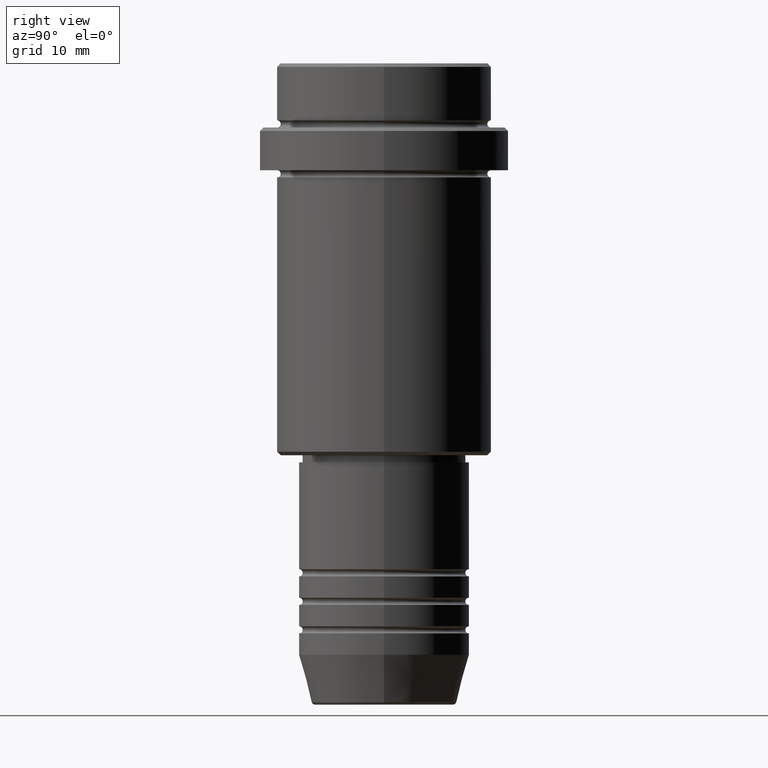
[diagram: clean part render]
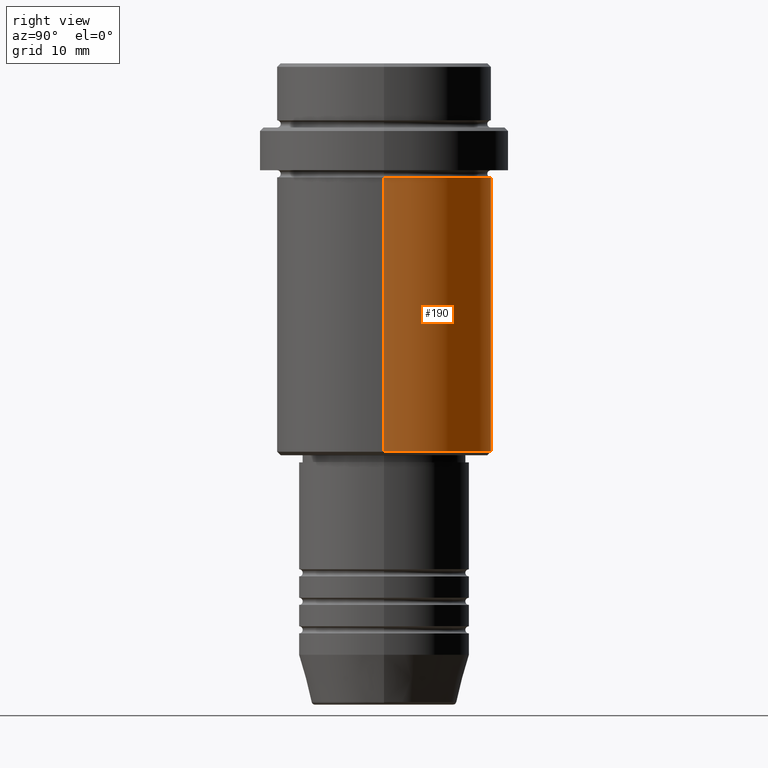
[diagram: same view with one face highlighted and labeled with its STEP entity id]
A machine part, right view. The second image highlights one B-rep face of the part: STEP entity #190.
In plain terms, the highlighted cylindrical surface (partial cylindrical patch) has radius 15 mm, axis along (-0, -0, 1).
Its self-contained STEP definition (entity closure, byte-faithful):
#70 = CYLINDRICAL_SURFACE ( 'NONE', #907, 15.00000000000000000 ) ;
#73 = DIRECTION ( 'NONE',  ( -0.000000000000000000, -0.000000000000000000, 1.000000000000000000 ) ) ;
#117 = CARTESIAN_POINT ( 'NONE',  ( 15.00000000000000000, 0.000000000000000000, -54.49999999999998579 ) ) ;
#130 = CIRCLE ( 'NONE', #320, 15.00000000000000000 ) ;
#168 = CARTESIAN_POINT ( 'NONE',  ( 15.00000000000000000, 0.000000000000000000, 0.000000000000000000 ) ) ;
#173 = DIRECTION ( 'NONE',  ( -0.000000000000000000, -0.000000000000000000, 1.000000000000000000 ) ) ;
#190 = ADVANCED_FACE ( 'NONE', ( #1153 ), #70, .T. ) ;
#201 = AXIS2_PLACEMENT_3D ( 'NONE', #567, #465, #827 ) ;
#273 = CARTESIAN_POINT ( 'NONE',  ( 0.000000000000000000, 0.000000000000000000, -54.49999999999998579 ) ) ;
#284 = CARTESIAN_POINT ( 'NONE',  ( 0.000000000000000000, 0.000000000000000000, 0.000000000000000000 ) ) ;
#300 = VECTOR ( 'NONE', #726, 1000.000000000000000 ) ;
#320 = AXIS2_PLACEMENT_3D ( 'NONE', #273, #589, #700 ) ;
#324 = VERTEX_POINT ( 'NONE', #1125 ) ;
#464 = VERTEX_POINT ( 'NONE', #117 ) ;
#465 = DIRECTION ( 'NONE',  ( -0.000000000000000000, -0.000000000000000000, 1.000000000000000000 ) ) ;
#567 = CARTESIAN_POINT ( 'NONE',  ( 0.000000000000000000, 0.000000000000000000, -16.00000000000000000 ) ) ;
#568 = EDGE_CURVE ( 'NONE', #795, #1205, #822, .T. ) ;
#589 = DIRECTION ( 'NONE',  ( -0.000000000000000000, -0.000000000000000000, 1.000000000000000000 ) ) ;
#651 = ORIENTED_EDGE ( 'NONE', *, *, #1362, .F. ) ;
#666 = EDGE_LOOP ( 'NONE', ( #1081, #1083, #651, #937 ) ) ;
#700 = DIRECTION ( 'NONE',  ( -1.000000000000000000, 0.000000000000000000, 0.000000000000000000 ) ) ;
#715 = EDGE_CURVE ( 'NONE', #464, #795, #130, .T. ) ;
#725 = DIRECTION ( 'NONE',  ( 1.000000000000000000, 0.000000000000000000, 0.000000000000000000 ) ) ;
#726 = DIRECTION ( 'NONE',  ( -0.000000000000000000, -0.000000000000000000, 1.000000000000000000 ) ) ;
#757 = CARTESIAN_POINT ( 'NONE',  ( -15.00000000000000000, 1.836970198721029589E-15, -54.49999999999998579 ) ) ;
#795 = VERTEX_POINT ( 'NONE', #757 ) ;
#806 = CIRCLE ( 'NONE', #201, 15.00000000000000178 ) ;
#822 = LINE ( 'NONE', #1164, #300 ) ;
#827 = DIRECTION ( 'NONE',  ( 1.000000000000000000, 0.000000000000000000, 0.000000000000000000 ) ) ;
#854 = VECTOR ( 'NONE', #73, 1000.000000000000000 ) ;
#907 = AXIS2_PLACEMENT_3D ( 'NONE', #284, #173, #725 ) ;
#924 = LINE ( 'NONE', #168, #854 ) ;
#937 = ORIENTED_EDGE ( 'NONE', *, *, #1399, .F. ) ;
#1081 = ORIENTED_EDGE ( 'NONE', *, *, #715, .T. ) ;
#1083 = ORIENTED_EDGE ( 'NONE', *, *, #568, .T. ) ;
#1125 = CARTESIAN_POINT ( 'NONE',  ( 15.00000000000000178, 0.000000000000000000, -16.00000000000000000 ) ) ;
#1153 = FACE_OUTER_BOUND ( 'NONE', #666, .T. ) ;
#1164 = CARTESIAN_POINT ( 'NONE',  ( -15.00000000000000000, 1.836970198721029589E-15, 0.000000000000000000 ) ) ;
#1205 = VERTEX_POINT ( 'NONE', #1276 ) ;
#1276 = CARTESIAN_POINT ( 'NONE',  ( -15.00000000000000355, 1.836970198721029983E-15, -16.00000000000000000 ) ) ;
#1362 = EDGE_CURVE ( 'NONE', #324, #1205, #806, .T. ) ;
#1399 = EDGE_CURVE ( 'NONE', #464, #324, #924, .T. ) ;